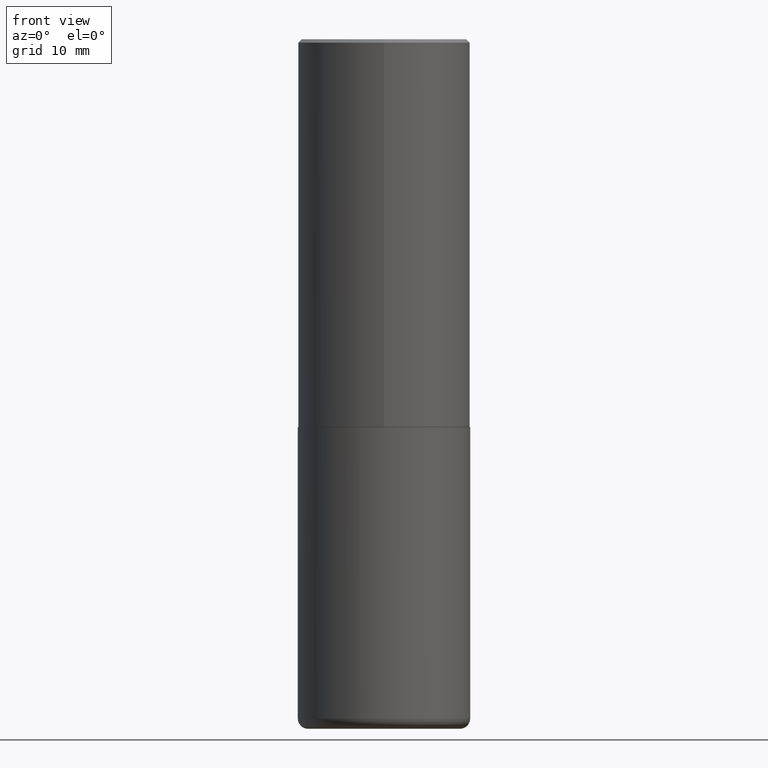
[diagram: clean part render]
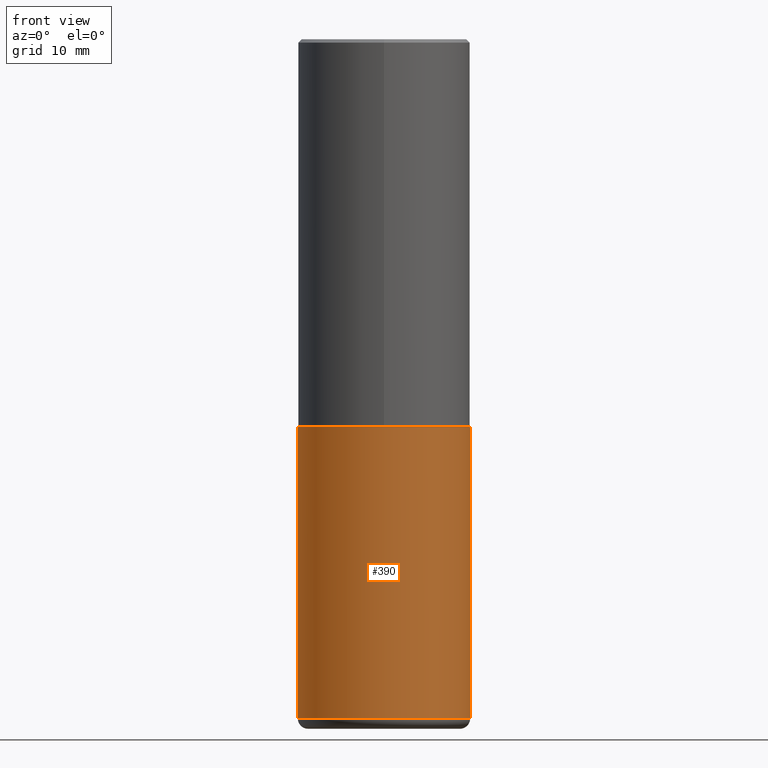
[diagram: same view with one face highlighted and labeled with its STEP entity id]
A machine part, front view. The second image highlights one B-rep face of the part: STEP entity #390.
In plain terms, the highlighted cylindrical surface (partial cylindrical patch) has radius 12.7 mm, axis along (-0, 0, 1).
Its self-contained STEP definition (entity closure, byte-faithful):
#1 = DIRECTION ( 'NONE',  ( 1.000000000000000000, -6.982962677686266711E-15, 0.000000000000000000 ) ) ;
#5 = CARTESIAN_POINT ( 'NONE',  ( -0.5000000000000000000, 3.552713678800500929E-15, -2.459467545127452891E-29 ) ) ;
#19 = DIRECTION ( 'NONE',  ( -2.445468806185136877E-29, 3.491481338843145188E-15, 1.000000000000000000 ) ) ;
#28 = FACE_OUTER_BOUND ( 'NONE', #248, .T. ) ;
#58 = VECTOR ( 'NONE', #330, 39.37007874015748143 ) ;
#67 = VERTEX_POINT ( 'NONE', #308 ) ;
#69 = CYLINDRICAL_SURFACE ( 'NONE', #257, 0.5000000000000000000 ) ;
#75 = LINE ( 'NONE', #5, #58 ) ;
#82 = ORIENTED_EDGE ( 'NONE', *, *, #127, .F. ) ;
#87 = ORIENTED_EDGE ( 'NONE', *, *, #403, .T. ) ;
#91 = DIRECTION ( 'NONE',  ( -2.445468806185136597E-29, 3.491481338843145583E-15, 1.000000000000000000 ) ) ;
#114 = EDGE_CURVE ( 'NONE', #67, #132, #176, .T. ) ;
#121 = VERTEX_POINT ( 'NONE', #292 ) ;
#126 = CARTESIAN_POINT ( 'NONE',  ( -0.5000000000000000000, -7.253421064919035302E-15, -2.250000000000000000 ) ) ;
#127 = EDGE_CURVE ( 'NONE', #164, #132, #380, .T. ) ;
#131 = AXIS2_PLACEMENT_3D ( 'NONE', #360, #417, #1 ) ;
#132 = VERTEX_POINT ( 'NONE', #407 ) ;
#135 = CARTESIAN_POINT ( 'NONE',  ( 0.000000000000000000, 0.000000000000000000, 0.000000000000000000 ) ) ;
#138 = AXIS2_PLACEMENT_3D ( 'NONE', #287, #91, #379 ) ;
#164 = VERTEX_POINT ( 'NONE', #126 ) ;
#176 = LINE ( 'NONE', #376, #324 ) ;
#209 = EDGE_CURVE ( 'NONE', #121, #164, #75, .T. ) ;
#248 = EDGE_LOOP ( 'NONE', ( #310, #87, #325, #82 ) ) ;
#257 = AXIS2_PLACEMENT_3D ( 'NONE', #135, #392, #297 ) ;
#287 = CARTESIAN_POINT ( 'NONE',  ( 5.502304813916557343E-29, -7.855833012397078448E-15, -2.250000000000000000 ) ) ;
#292 = CARTESIAN_POINT ( 'NONE',  ( -0.5000000000000000000, -1.020372279624149466E-14, -3.939999999999999947 ) ) ;
#297 = DIRECTION ( 'NONE',  ( 1.000000000000000000, -6.982962677686266711E-15, 4.876176775795935793E-29 ) ) ;
#308 = CARTESIAN_POINT ( 'NONE',  ( 0.5000000000000000000, -1.724791781388512737E-14, -3.939999999999999947 ) ) ;
#310 = ORIENTED_EDGE ( 'NONE', *, *, #209, .F. ) ;
#324 = VECTOR ( 'NONE', #19, 39.37007874015748143 ) ;
#325 = ORIENTED_EDGE ( 'NONE', *, *, #114, .T. ) ;
#330 = DIRECTION ( 'NONE',  ( -2.445468806185136877E-29, 3.491481338843145188E-15, 1.000000000000000000 ) ) ;
#348 = CIRCLE ( 'NONE', #131, 0.5000000000000000000 ) ;
#360 = CARTESIAN_POINT ( 'NONE',  ( 9.635147096369438236E-29, -1.375643647504199401E-14, -3.939999999999999947 ) ) ;
#376 = CARTESIAN_POINT ( 'NONE',  ( 0.5000000000000000000, -3.491481338843133355E-15, 2.438088387897967896E-29 ) ) ;
#379 = DIRECTION ( 'NONE',  ( 1.000000000000000000, -6.982962677686269077E-15, 0.000000000000000000 ) ) ;
#380 = CIRCLE ( 'NONE', #138, 0.5000000000000000000 ) ;
#390 = ADVANCED_FACE ( 'NONE', ( #28 ), #69, .T. ) ;
#392 = DIRECTION ( 'NONE',  ( -2.445468806185136597E-29, 3.491481338843145583E-15, 1.000000000000000000 ) ) ;
#403 = EDGE_CURVE ( 'NONE', #121, #67, #348, .T. ) ;
#407 = CARTESIAN_POINT ( 'NONE',  ( 0.5000000000000000000, -1.134731435124021180E-14, -2.250000000000000000 ) ) ;
#417 = DIRECTION ( 'NONE',  ( -2.445468806185136597E-29, 3.491481338843145583E-15, 1.000000000000000000 ) ) ;